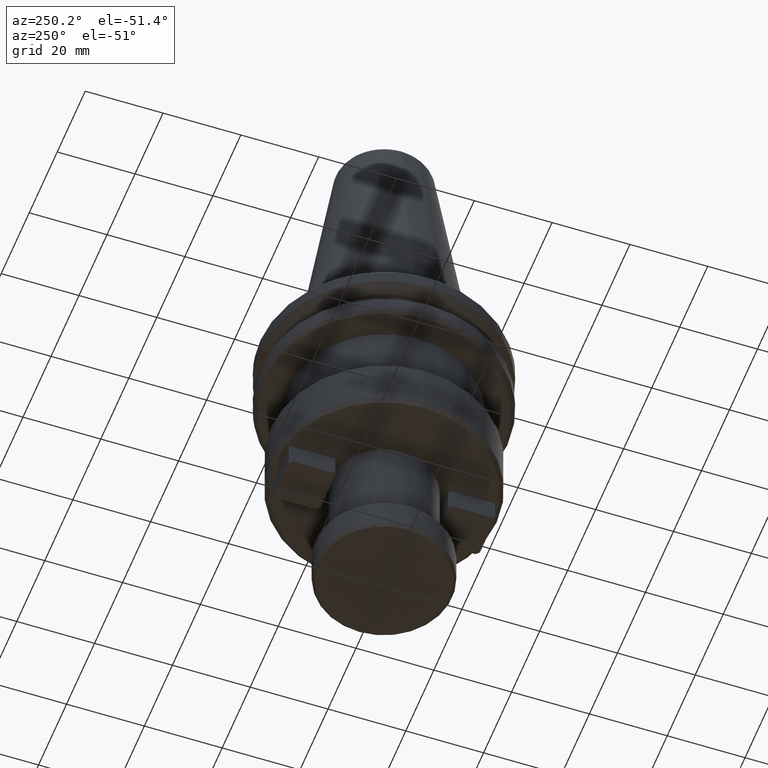
[diagram: clean part render]
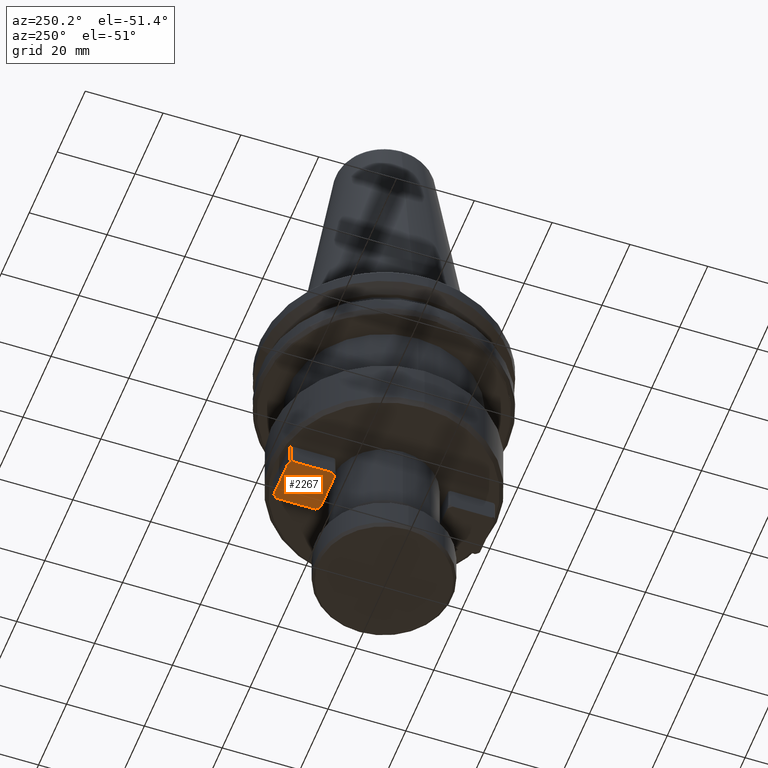
[diagram: same view with one face highlighted and labeled with its STEP entity id]
A machine part, auxiliary view. The second image highlights one B-rep face of the part: STEP entity #2267.
In plain terms, the highlighted planar face has unit normal (0, 0, 1).
Its self-contained STEP definition (entity closure, byte-faithful):
#24 = DIRECTION ( 'NONE',  ( -0.7071067811865474600, -0.7071067811865474600, 0.0000000000000000000 ) ) ;
#95 = EDGE_CURVE ( 'NONE', #1952, #452, #4145, .T. ) ;
#106 = VECTOR ( 'NONE', #2167, 1000.000000000000000 ) ;
#423 = EDGE_CURVE ( 'NONE', #3360, #1685, #526, .T. ) ;
#452 = VERTEX_POINT ( 'NONE', #4260 ) ;
#526 = LINE ( 'NONE', #4335, #4129 ) ;
#603 = LINE ( 'NONE', #934, #4106 ) ;
#682 = VECTOR ( 'NONE', #2320, 1000.000000000000000 ) ;
#722 = DIRECTION ( 'NONE',  ( -9.396418828207704400E-016, -1.000000000000000000, 0.0000000000000000000 ) ) ;
#756 = LINE ( 'NONE', #3894, #1535 ) ;
#884 = DIRECTION ( 'NONE',  ( 0.7071067811865484600, -0.7071067811865465700, 0.0000000000000000000 ) ) ;
#910 = CARTESIAN_POINT ( 'NONE',  ( 6.000000000000003600, 15.46568542494926400, -55.80000000000000400 ) ) ;
#934 = CARTESIAN_POINT ( 'NONE',  ( -6.000000000000002700, 15.46568542494923000, -55.80000000000000400 ) ) ;
#998 = ORIENTED_EDGE ( 'NONE', *, *, #1138, .T. ) ;
#1062 = ORIENTED_EDGE ( 'NONE', *, *, #95, .T. ) ;
#1127 = ORIENTED_EDGE ( 'NONE', *, *, #3404, .F. ) ;
#1138 = EDGE_CURVE ( 'NONE', #4096, #1952, #2752, .T. ) ;
#1206 = CARTESIAN_POINT ( 'NONE',  ( 6.000000000000012400, 26.50000000000001100, -55.80000000000000400 ) ) ;
#1399 = CARTESIAN_POINT ( 'NONE',  ( -5.034314575050761900, 26.50000000000001100, -55.80000000000000400 ) ) ;
#1535 = VECTOR ( 'NONE', #3847, 1000.000000000000100 ) ;
#1553 = CARTESIAN_POINT ( 'NONE',  ( 6.000000000000001800, 15.46568542494925700, -55.80000000000000400 ) ) ;
#1685 = VERTEX_POINT ( 'NONE', #4215 ) ;
#1697 = FACE_OUTER_BOUND ( 'NONE', #2306, .T. ) ;
#1698 = ORIENTED_EDGE ( 'NONE', *, *, #3985, .F. ) ;
#1736 = ORIENTED_EDGE ( 'NONE', *, *, #423, .F. ) ;
#1831 = CARTESIAN_POINT ( 'NONE',  ( -5.999999999999992900, 26.50000000000001100, -55.80000000000000400 ) ) ;
#1943 = ORIENTED_EDGE ( 'NONE', *, *, #2391, .F. ) ;
#1952 = VERTEX_POINT ( 'NONE', #4102 ) ;
#1997 = ORIENTED_EDGE ( 'NONE', *, *, #2051, .F. ) ;
#2012 = VERTEX_POINT ( 'NONE', #3955 ) ;
#2051 = EDGE_CURVE ( 'NONE', #2479, #3992, #756, .T. ) ;
#2128 = CARTESIAN_POINT ( 'NONE',  ( 6.000000000000010700, 25.53431457505077200, -55.80000000000000400 ) ) ;
#2167 = DIRECTION ( 'NONE',  ( -8.673617379884035500E-016, -1.000000000000000000, 0.0000000000000000000 ) ) ;
#2267 = ADVANCED_FACE ( 'NONE', ( #1697 ), #2799, .F. ) ;
#2306 = EDGE_LOOP ( 'NONE', ( #998, #1062, #1127, #1698, #1736, #1943, #1997, #2536 ) ) ;
#2314 = CARTESIAN_POINT ( 'NONE',  ( 6.000000000000012400, 26.50000000000001100, -55.80000000000000400 ) ) ;
#2320 = DIRECTION ( 'NONE',  ( -1.000000000000000000, -0.0000000000000000000, 0.0000000000000000000 ) ) ;
#2391 = EDGE_CURVE ( 'NONE', #3992, #3360, #4164, .T. ) ;
#2479 = VERTEX_POINT ( 'NONE', #2128 ) ;
#2536 = ORIENTED_EDGE ( 'NONE', *, *, #3092, .T. ) ;
#2752 = LINE ( 'NONE', #910, #4513 ) ;
#2792 = DIRECTION ( 'NONE',  ( 1.000000000000000000, 0.0000000000000000000, -0.0000000000000000000 ) ) ;
#2793 = DIRECTION ( 'NONE',  ( -1.000000000000000000, -0.0000000000000000000, 0.0000000000000000000 ) ) ;
#2794 = DIRECTION ( 'NONE',  ( 0.0000000000000000000, 0.0000000000000000000, 1.000000000000000000 ) ) ;
#2799 = PLANE ( 'NONE',  #4250 ) ;
#2812 = CARTESIAN_POINT ( 'NONE',  ( 0.0000000000000000000, 0.0000000000000000000, -55.80000000000000400 ) ) ;
#2871 = CARTESIAN_POINT ( 'NONE',  ( 6.000000000000000900, 14.50000000000000900, -55.80000000000000400 ) ) ;
#2979 = LINE ( 'NONE', #1831, #106 ) ;
#3092 = EDGE_CURVE ( 'NONE', #2479, #4096, #4156, .T. ) ;
#3289 = VECTOR ( 'NONE', #2793, 1000.000000000000000 ) ;
#3301 = VECTOR ( 'NONE', #722, 1000.000000000000000 ) ;
#3360 = VERTEX_POINT ( 'NONE', #1399 ) ;
#3404 = EDGE_CURVE ( 'NONE', #2012, #452, #603, .T. ) ;
#3847 = DIRECTION ( 'NONE',  ( -0.7071067811865474600, 0.7071067811865474600, 0.0000000000000000000 ) ) ;
#3894 = CARTESIAN_POINT ( 'NONE',  ( 6.000000000000010700, 25.53431457505077200, -55.80000000000000400 ) ) ;
#3955 = CARTESIAN_POINT ( 'NONE',  ( -5.999999999999998200, 15.46568542494922300, -55.80000000000000400 ) ) ;
#3985 = EDGE_CURVE ( 'NONE', #1685, #2012, #2979, .T. ) ;
#3992 = VERTEX_POINT ( 'NONE', #4193 ) ;
#4096 = VERTEX_POINT ( 'NONE', #1553 ) ;
#4102 = CARTESIAN_POINT ( 'NONE',  ( 5.034314575050752100, 14.50000000000001100, -55.80000000000000400 ) ) ;
#4106 = VECTOR ( 'NONE', #884, 1000.000000000000000 ) ;
#4129 = VECTOR ( 'NONE', #4279, 999.9999999999998900 ) ;
#4145 = LINE ( 'NONE', #2871, #3289 ) ;
#4156 = LINE ( 'NONE', #1206, #3301 ) ;
#4164 = LINE ( 'NONE', #2314, #682 ) ;
#4193 = CARTESIAN_POINT ( 'NONE',  ( 5.034314575050776100, 26.50000000000001100, -55.80000000000000400 ) ) ;
#4215 = CARTESIAN_POINT ( 'NONE',  ( -5.999999999999992000, 25.53431457505077900, -55.80000000000000400 ) ) ;
#4250 = AXIS2_PLACEMENT_3D ( 'NONE', #2812, #2794, #2792 ) ;
#4260 = CARTESIAN_POINT ( 'NONE',  ( -5.034314575050779600, 14.50000000000000900, -55.80000000000000400 ) ) ;
#4279 = DIRECTION ( 'NONE',  ( -0.7071067811865482400, -0.7071067811865469100, 0.0000000000000000000 ) ) ;
#4335 = CARTESIAN_POINT ( 'NONE',  ( -5.034314575050762700, 26.50000000000001100, -55.80000000000000400 ) ) ;
#4513 = VECTOR ( 'NONE', #24, 1000.000000000000100 ) ;